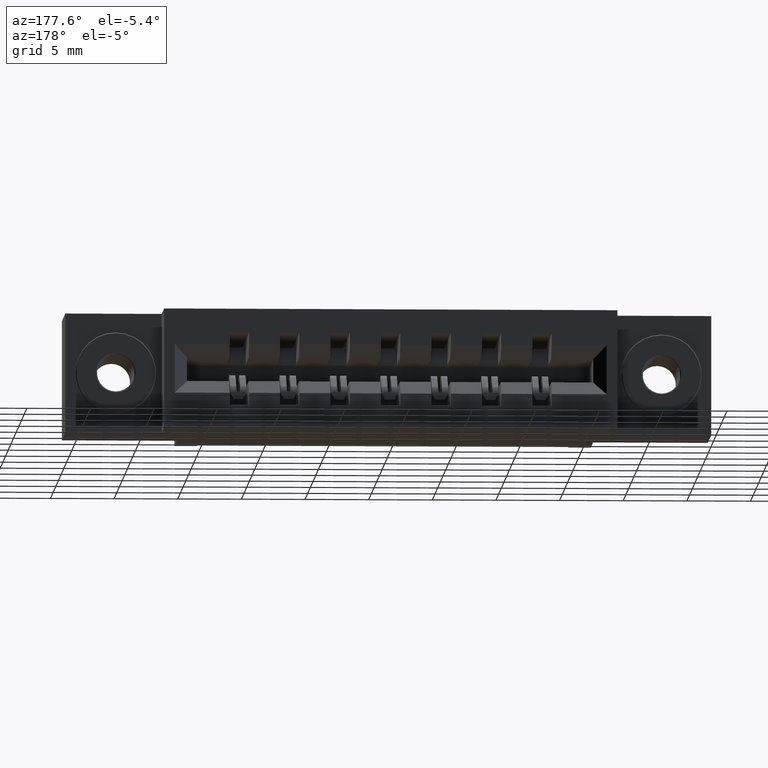
[diagram: clean part render]
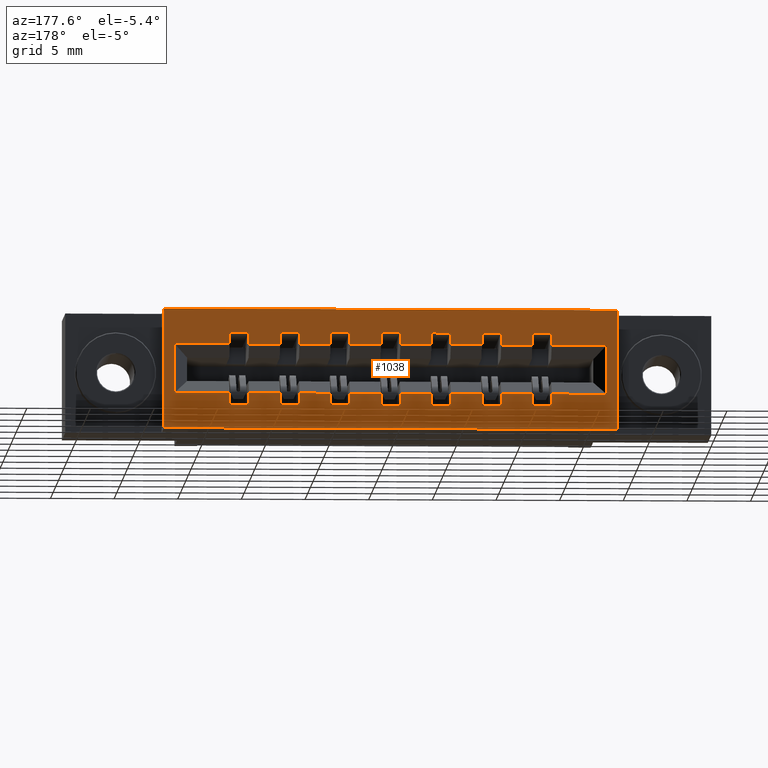
[diagram: same view with one face highlighted and labeled with its STEP entity id]
A machine part, auxiliary view. The second image highlights one B-rep face of the part: STEP entity #1038.
In plain terms, the highlighted planar face has unit normal (0, -1, 0).
Its self-contained STEP definition (entity closure, byte-faithful):
#21 = VERTEX_POINT ( 'NONE', #2832 ) ;
#44 = DIRECTION ( 'NONE',  ( -1.000000000000000000, -0.0000000000000000000, -6.836456440601259400E-017 ) ) ;
#121 = LINE ( 'NONE', #1940, #5985 ) ;
#132 = VECTOR ( 'NONE', #4659, 39.37007874015748100 ) ;
#165 = EDGE_CURVE ( 'NONE', #7368, #2828, #7023, .T. ) ;
#183 = VERTEX_POINT ( 'NONE', #3971 ) ;
#190 = VERTEX_POINT ( 'NONE', #9858 ) ;
#210 = VECTOR ( 'NONE', #309, 39.37007874015748100 ) ;
#213 = EDGE_CURVE ( 'NONE', #7865, #2107, #8834, .T. ) ;
#232 = EDGE_CURVE ( 'NONE', #6452, #5898, #6629, .T. ) ;
#238 = EDGE_CURVE ( 'NONE', #8641, #8910, #5378, .T. ) ;
#281 = LINE ( 'NONE', #7581, #6788 ) ;
#309 = DIRECTION ( 'NONE',  ( 0.0000000000000000000, 0.0000000000000000000, -1.000000000000000000 ) ) ;
#325 = VECTOR ( 'NONE', #555, 39.37007874015748100 ) ;
#379 = VECTOR ( 'NONE', #629, 39.37007874015748100 ) ;
#402 = DIRECTION ( 'NONE',  ( 1.000000000000000000, -0.0000000000000000000, -0.0000000000000000000 ) ) ;
#403 = DIRECTION ( 'NONE',  ( 0.0000000000000000000, 0.0000000000000000000, 1.000000000000000000 ) ) ;
#419 = VERTEX_POINT ( 'NONE', #8577 ) ;
#423 = VECTOR ( 'NONE', #8334, 39.37007874015748100 ) ;
#424 = EDGE_CURVE ( 'NONE', #3993, #10382, #6373, .T. ) ;
#426 = CARTESIAN_POINT ( 'NONE',  ( 0.9689999999999998600, 0.5999999999999999800, -0.07249999999999998100 ) ) ;
#437 = EDGE_CURVE ( 'NONE', #6455, #7312, #2318, .T. ) ;
#442 = CARTESIAN_POINT ( 'NONE',  ( 1.184999999999999800, 0.5999999999999999800, -0.2610000000000000100 ) ) ;
#448 = EDGE_CURVE ( 'NONE', #8500, #190, #121, .T. ) ;
#467 = LINE ( 'NONE', #4052, #6715 ) ;
#493 = EDGE_CURVE ( 'NONE', #3047, #8714, #4609, .T. ) ;
#535 = LINE ( 'NONE', #5491, #7574 ) ;
#542 = DIRECTION ( 'NONE',  ( 0.0000000000000000000, 0.0000000000000000000, 1.000000000000000000 ) ) ;
#555 = DIRECTION ( 'NONE',  ( 1.000000000000000000, -0.0000000000000000000, -0.0000000000000000000 ) ) ;
#573 = EDGE_CURVE ( 'NONE', #6691, #2464, #1266, .T. ) ;
#577 = LINE ( 'NONE', #1114, #3533 ) ;
#578 = LINE ( 'NONE', #6471, #6570 ) ;
#597 = CARTESIAN_POINT ( 'NONE',  ( 0.5610000000000000500, 0.5999999999999999800, -0.2974999999999999900 ) ) ;
#629 = DIRECTION ( 'NONE',  ( -1.000000000000000000, 0.0000000000000000000, 0.0000000000000000000 ) ) ;
#653 = ORIENTED_EDGE ( 'NONE', *, *, #5576, .F. ) ;
#695 = ORIENTED_EDGE ( 'NONE', *, *, #424, .F. ) ;
#704 = DIRECTION ( 'NONE',  ( 1.000000000000000000, 0.0000000000000000000, 0.0000000000000000000 ) ) ;
#719 = LINE ( 'NONE', #1212, #4170 ) ;
#730 = LINE ( 'NONE', #4861, #2662 ) ;
#746 = CARTESIAN_POINT ( 'NONE',  ( 0.0000000000000000000, 0.5999999999999999800, -0.2609999999999999500 ) ) ;
#778 = VERTEX_POINT ( 'NONE', #9013 ) ;
#834 = ORIENTED_EDGE ( 'NONE', *, *, #8287, .T. ) ;
#876 = DIRECTION ( 'NONE',  ( 0.0000000000000000000, 0.0000000000000000000, 1.000000000000000000 ) ) ;
#897 = ORIENTED_EDGE ( 'NONE', *, *, #7790, .F. ) ;
#923 = ORIENTED_EDGE ( 'NONE', *, *, #5392, .T. ) ;
#962 = DIRECTION ( 'NONE',  ( -1.000000000000000000, 0.0000000000000000000, 0.0000000000000000000 ) ) ;
#974 = VECTOR ( 'NONE', #8748, 39.37007874015748100 ) ;
#1001 = ORIENTED_EDGE ( 'NONE', *, *, #8624, .T. ) ;
#1013 = CARTESIAN_POINT ( 'NONE',  ( 0.8129999999999999400, 0.5999999999999999800, -0.07249999999999999500 ) ) ;
#1038 = ADVANCED_FACE ( 'NONE', ( #5855, #3437 ), #5398, .F. ) ;
#1048 = ORIENTED_EDGE ( 'NONE', *, *, #8822, .F. ) ;
#1056 = ORIENTED_EDGE ( 'NONE', *, *, #6084, .T. ) ;
#1085 = LINE ( 'NONE', #8165, #10150 ) ;
#1114 = CARTESIAN_POINT ( 'NONE',  ( 0.0000000000000000000, 0.5999999999999999800, -0.1090000000000002200 ) ) ;
#1152 = EDGE_CURVE ( 'NONE', #8688, #6455, #1387, .T. ) ;
#1190 = EDGE_CURVE ( 'NONE', #5902, #3109, #9061, .T. ) ;
#1202 = LINE ( 'NONE', #3444, #5061 ) ;
#1212 = CARTESIAN_POINT ( 'NONE',  ( 1.496999999999999900, 0.5999999999999999800, -0.2974999999999999300 ) ) ;
#1218 = CARTESIAN_POINT ( 'NONE',  ( 1.124999999999999800, 0.5999999999999999800, -0.2974999999999999900 ) ) ;
#1222 = CARTESIAN_POINT ( 'NONE',  ( 0.5010000000000001100, 0.5999999999999999800, -0.1090000000000001900 ) ) ;
#1224 = CARTESIAN_POINT ( 'NONE',  ( 1.700000000000000000, 0.5999999999999999800, -0.3699999999999998800 ) ) ;
#1241 = VERTEX_POINT ( 'NONE', #7941 ) ;
#1246 = EDGE_CURVE ( 'NONE', #4399, #7312, #8315, .T. ) ;
#1266 = LINE ( 'NONE', #5486, #3733 ) ;
#1268 = LINE ( 'NONE', #3766, #9821 ) ;
#1279 = VECTOR ( 'NONE', #5055, 39.37007874015748100 ) ;
#1284 = CARTESIAN_POINT ( 'NONE',  ( 1.280999999999999700, 0.5999999999999999800, -0.07249999999999996700 ) ) ;
#1304 = DIRECTION ( 'NONE',  ( 0.0000000000000000000, 0.0000000000000000000, 1.000000000000000000 ) ) ;
#1313 = VECTOR ( 'NONE', #10270, 39.37007874015748100 ) ;
#1360 = CARTESIAN_POINT ( 'NONE',  ( 1.028999999999999900, 0.5999999999999999800, -0.2974999999999999900 ) ) ;
#1367 = CARTESIAN_POINT ( 'NONE',  ( 1.340999999999999700, 0.5999999999999999800, -0.2609999999999999500 ) ) ;
#1387 = LINE ( 'NONE', #5474, #9808 ) ;
#1423 = CARTESIAN_POINT ( 'NONE',  ( 0.8730000000000000000, 0.5999999999999999800, -0.2974999999999999900 ) ) ;
#1432 = ORIENTED_EDGE ( 'NONE', *, *, #9796, .T. ) ;
#1498 = ORIENTED_EDGE ( 'NONE', *, *, #238, .F. ) ;
#1544 = CARTESIAN_POINT ( 'NONE',  ( 0.7170000000000000800, 0.5999999999999999800, -0.1090000000000002200 ) ) ;
#1571 = CARTESIAN_POINT ( 'NONE',  ( 1.280999999999999700, 0.5999999999999999800, -0.2974999999999999300 ) ) ;
#1654 = VERTEX_POINT ( 'NONE', #6219 ) ;
#1713 = LINE ( 'NONE', #6533, #3517 ) ;
#1722 = EDGE_CURVE ( 'NONE', #3357, #1654, #4207, .T. ) ;
#1737 = VECTOR ( 'NONE', #962, 39.37007874015748100 ) ;
#1739 = DIRECTION ( 'NONE',  ( -1.000000000000000000, 0.0000000000000000000, 0.0000000000000000000 ) ) ;
#1789 = VECTOR ( 'NONE', #1739, 39.37007874015748100 ) ;
#1835 = ORIENTED_EDGE ( 'NONE', *, *, #3673, .T. ) ;
#1871 = VERTEX_POINT ( 'NONE', #2394 ) ;
#1880 = EDGE_CURVE ( 'NONE', #4597, #5258, #3965, .T. ) ;
#1911 = LINE ( 'NONE', #2133, #9582 ) ;
#1940 = CARTESIAN_POINT ( 'NONE',  ( 0.6570000000000000300, 0.5999999999999999800, -0.2974999999999999900 ) ) ;
#1945 = VERTEX_POINT ( 'NONE', #5692 ) ;
#1970 = DIRECTION ( 'NONE',  ( 0.0000000000000000000, 0.0000000000000000000, 1.000000000000000000 ) ) ;
#1995 = ORIENTED_EDGE ( 'NONE', *, *, #9220, .T. ) ;
#2017 = CARTESIAN_POINT ( 'NONE',  ( 0.3310000000000001800, 0.5999999999999999800, -0.3700000000000001600 ) ) ;
#2033 = LINE ( 'NONE', #1013, #6750 ) ;
#2052 = CARTESIAN_POINT ( 'NONE',  ( 0.5610000000000000500, 0.5999999999999999800, -0.1090000000000002200 ) ) ;
#2107 = VERTEX_POINT ( 'NONE', #3488 ) ;
#2133 = CARTESIAN_POINT ( 'NONE',  ( 0.9689999999999998600, 0.5999999999999999800, -0.2974999999999999900 ) ) ;
#2204 = ORIENTED_EDGE ( 'NONE', *, *, #6812, .T. ) ;
#2285 = DIRECTION ( 'NONE',  ( 1.000000000000000000, 0.0000000000000000000, 0.0000000000000000000 ) ) ;
#2318 = LINE ( 'NONE', #4380, #7668 ) ;
#2336 = DIRECTION ( 'NONE',  ( 0.0000000000000000000, 0.0000000000000000000, 1.000000000000000000 ) ) ;
#2367 = VECTOR ( 'NONE', #6201, 39.37007874015748100 ) ;
#2369 = VERTEX_POINT ( 'NONE', #7256 ) ;
#2376 = LINE ( 'NONE', #3521, #9005 ) ;
#2394 = CARTESIAN_POINT ( 'NONE',  ( 0.5610000000000000500, 0.5999999999999999800, -0.2974999999999999900 ) ) ;
#2402 = LINE ( 'NONE', #5718, #5328 ) ;
#2432 = EDGE_CURVE ( 'NONE', #6928, #5305, #5746, .T. ) ;
#2464 = VERTEX_POINT ( 'NONE', #3887 ) ;
#2509 = VERTEX_POINT ( 'NONE', #8028 ) ;
#2524 = LINE ( 'NONE', #5783, #1737 ) ;
#2662 = VECTOR ( 'NONE', #7258, 39.37007874015748100 ) ;
#2674 = ORIENTED_EDGE ( 'NONE', *, *, #232, .T. ) ;
#2682 = ORIENTED_EDGE ( 'NONE', *, *, #9804, .T. ) ;
#2715 = LINE ( 'NONE', #746, #8718 ) ;
#2728 = DIRECTION ( 'NONE',  ( 1.000000000000000000, -0.0000000000000000000, -0.0000000000000000000 ) ) ;
#2767 = ORIENTED_EDGE ( 'NONE', *, *, #8268, .T. ) ;
#2791 = ORIENTED_EDGE ( 'NONE', *, *, #3566, .F. ) ;
#2798 = CARTESIAN_POINT ( 'NONE',  ( 0.9689999999999998600, 0.5999999999999999800, -0.2974999999999999900 ) ) ;
#2828 = VERTEX_POINT ( 'NONE', #9915 ) ;
#2832 = CARTESIAN_POINT ( 'NONE',  ( 1.666999999999999800, 0.5999999999999999800, -0.1090000000000002200 ) ) ;
#2873 = CARTESIAN_POINT ( 'NONE',  ( 1.666999999999999800, 0.5999999999999999800, -0.2609999999999999500 ) ) ;
#2889 = EDGE_CURVE ( 'NONE', #3631, #7065, #6120, .T. ) ;
#2902 = LINE ( 'NONE', #7576, #8023 ) ;
#2908 = ORIENTED_EDGE ( 'NONE', *, *, #9075, .T. ) ;
#2927 = AXIS2_PLACEMENT_3D ( 'NONE', #7685, #7798, #5324 ) ;
#2944 = CARTESIAN_POINT ( 'NONE',  ( 0.8129999999999999400, 0.5999999999999999800, -0.2974999999999999900 ) ) ;
#2961 = VECTOR ( 'NONE', #9236, 39.37007874015748100 ) ;
#2968 = CARTESIAN_POINT ( 'NONE',  ( 1.124999999999999800, 0.5999999999999999800, -0.1090000000000001500 ) ) ;
#3032 = VERTEX_POINT ( 'NONE', #3663 ) ;
#3035 = LINE ( 'NONE', #8939, #3690 ) ;
#3045 = VECTOR ( 'NONE', #6198, 39.37007874015748100 ) ;
#3047 = VERTEX_POINT ( 'NONE', #8595 ) ;
#3091 = CARTESIAN_POINT ( 'NONE',  ( 0.0000000000000000000, 0.5999999999999999800, -0.1090000000000002200 ) ) ;
#3109 = VERTEX_POINT ( 'NONE', #10412 ) ;
#3121 = CARTESIAN_POINT ( 'NONE',  ( 0.6570000000000000300, 0.5999999999999999800, -0.2974999999999999900 ) ) ;
#3164 = CARTESIAN_POINT ( 'NONE',  ( 1.340999999999999700, 0.5999999999999999800, -0.1090000000000002200 ) ) ;
#3172 = VECTOR ( 'NONE', #3955, 39.37007874015748100 ) ;
#3195 = CARTESIAN_POINT ( 'NONE',  ( 0.2980000000000001000, 0.5999999999999999800, -0.3700000000000001600 ) ) ;
#3255 = LINE ( 'NONE', #4600, #1313 ) ;
#3261 = CARTESIAN_POINT ( 'NONE',  ( 1.184999999999999800, 0.5999999999999999800, -0.2974999999999999900 ) ) ;
#3301 = DIRECTION ( 'NONE',  ( -1.000000000000000000, 0.0000000000000000000, 0.0000000000000000000 ) ) ;
#3310 = EDGE_LOOP ( 'NONE', ( #5290, #8630, #4258, #1995, #10092, #6071, #5326, #8923, #897, #2682, #3502, #653, #5526, #923, #4115, #5649, #8194, #9530, #2204, #6216, #3410, #4393, #4538, #9480, #1048, #3748, #6910, #7377, #4555, #8039, #6853, #5947, #6400, #5325, #3846, #1001, #9763, #10283, #6783, #9411, #1498, #9399, #3670, #1056, #3609, #10106, #6204, #1835, #2791, #5723, #1432, #834, #695, #2767, #8823, #10434, #4615, #2908, #10271, #7325 ) ) ;
#3320 = CARTESIAN_POINT ( 'NONE',  ( 0.0000000000000000000, 0.5999999999999999800, -0.1090000000000002200 ) ) ;
#3321 = VECTOR ( 'NONE', #9511, 39.37007874015748100 ) ;
#3328 = CARTESIAN_POINT ( 'NONE',  ( 0.0000000000000000000, 0.5999999999999999800, -0.1090000000000002200 ) ) ;
#3330 = EDGE_CURVE ( 'NONE', #2509, #9320, #6508, .T. ) ;
#3336 = CARTESIAN_POINT ( 'NONE',  ( 1.028999999999999900, 0.5999999999999999800, -0.2610000000000000100 ) ) ;
#3349 = LINE ( 'NONE', #6346, #5642 ) ;
#3351 = DIRECTION ( 'NONE',  ( -1.000000000000000000, 0.0000000000000000000, 0.0000000000000000000 ) ) ;
#3357 = VERTEX_POINT ( 'NONE', #9942 ) ;
#3409 = CARTESIAN_POINT ( 'NONE',  ( 1.437000000000000100, 0.5999999999999999800, -0.2609999999999999500 ) ) ;
#3410 = ORIENTED_EDGE ( 'NONE', *, *, #4729, .F. ) ;
#3437 = FACE_BOUND ( 'NONE', #3310, .T. ) ;
#3441 = VERTEX_POINT ( 'NONE', #5047 ) ;
#3444 = CARTESIAN_POINT ( 'NONE',  ( 1.700000000000000000, 0.5999999999999999800, 0.0000000000000000000 ) ) ;
#3454 = VECTOR ( 'NONE', #542, 39.37007874015748100 ) ;
#3474 = EDGE_CURVE ( 'NONE', #21, #9751, #3990, .T. ) ;
#3488 = CARTESIAN_POINT ( 'NONE',  ( 1.700000000000000000, 0.5999999999999999800, 0.0000000000000000000 ) ) ;
#3502 = ORIENTED_EDGE ( 'NONE', *, *, #3834, .T. ) ;
#3503 = CARTESIAN_POINT ( 'NONE',  ( 0.6570000000000000300, 0.5999999999999999800, -0.2610000000000000100 ) ) ;
#3504 = CARTESIAN_POINT ( 'NONE',  ( 0.6570000000000000300, 0.5999999999999999800, -0.07250000000000000900 ) ) ;
#3517 = VECTOR ( 'NONE', #9852, 39.37007874015748100 ) ;
#3521 = CARTESIAN_POINT ( 'NONE',  ( 1.028999999999999900, 0.5999999999999999800, -0.2974999999999999900 ) ) ;
#3533 = VECTOR ( 'NONE', #6038, 39.37007874015748100 ) ;
#3559 = LINE ( 'NONE', #2944, #5959 ) ;
#3566 = EDGE_CURVE ( 'NONE', #3631, #6408, #1911, .T. ) ;
#3569 = EDGE_CURVE ( 'NONE', #190, #2464, #8199, .T. ) ;
#3597 = VECTOR ( 'NONE', #9711, 39.37007874015748100 ) ;
#3609 = ORIENTED_EDGE ( 'NONE', *, *, #1722, .F. ) ;
#3631 = VERTEX_POINT ( 'NONE', #6147 ) ;
#3663 = CARTESIAN_POINT ( 'NONE',  ( 1.184999999999999800, 0.5999999999999999800, -0.07249999999999996700 ) ) ;
#3670 = ORIENTED_EDGE ( 'NONE', *, *, #1190, .T. ) ;
#3673 = EDGE_CURVE ( 'NONE', #10462, #6408, #1268, .T. ) ;
#3677 = VECTOR ( 'NONE', #8345, 39.37007874015748100 ) ;
#3679 = CARTESIAN_POINT ( 'NONE',  ( 1.124999999999999800, 0.5999999999999999800, -0.2974999999999999900 ) ) ;
#3690 = VECTOR ( 'NONE', #4121, 39.37007874015748100 ) ;
#3733 = VECTOR ( 'NONE', #6209, 39.37007874015748100 ) ;
#3748 = ORIENTED_EDGE ( 'NONE', *, *, #9202, .T. ) ;
#3766 = CARTESIAN_POINT ( 'NONE',  ( 0.0000000000000000000, 0.5999999999999999800, -0.2609999999999999500 ) ) ;
#3775 = DIRECTION ( 'NONE',  ( 1.000000000000000000, -0.0000000000000000000, -0.0000000000000000000 ) ) ;
#3794 = VECTOR ( 'NONE', #6539, 39.37007874015748100 ) ;
#3808 = CARTESIAN_POINT ( 'NONE',  ( 0.7170000000000000800, 0.5999999999999999800, -0.2974999999999999900 ) ) ;
#3834 = EDGE_CURVE ( 'NONE', #8238, #7067, #7799, .T. ) ;
#3846 = ORIENTED_EDGE ( 'NONE', *, *, #9385, .T. ) ;
#3847 = CARTESIAN_POINT ( 'NONE',  ( 0.5010000000000001100, 0.5999999999999999800, -0.07250000000000000900 ) ) ;
#3882 = CARTESIAN_POINT ( 'NONE',  ( 1.184999999999999800, 0.5999999999999999800, -0.2974999999999999900 ) ) ;
#3887 = CARTESIAN_POINT ( 'NONE',  ( 0.7170000000000000800, 0.5999999999999999800, -0.07250000000000000900 ) ) ;
#3897 = DIRECTION ( 'NONE',  ( 0.0000000000000000000, 0.0000000000000000000, 1.000000000000000000 ) ) ;
#3925 = VECTOR ( 'NONE', #8128, 39.37007874015748100 ) ;
#3955 = DIRECTION ( 'NONE',  ( 1.000000000000000000, -0.0000000000000000000, -0.0000000000000000000 ) ) ;
#3965 = LINE ( 'NONE', #4872, #8443 ) ;
#3971 = CARTESIAN_POINT ( 'NONE',  ( 0.5010000000000001100, 0.5999999999999999800, -0.07250000000000000900 ) ) ;
#3990 = LINE ( 'NONE', #3328, #1789 ) ;
#3993 = VERTEX_POINT ( 'NONE', #10006 ) ;
#4003 = EDGE_CURVE ( 'NONE', #778, #7511, #2033, .T. ) ;
#4005 = VERTEX_POINT ( 'NONE', #8302 ) ;
#4028 = CARTESIAN_POINT ( 'NONE',  ( 1.437000000000000100, 0.5999999999999999800, -0.2974999999999999300 ) ) ;
#4041 = VERTEX_POINT ( 'NONE', #8578 ) ;
#4052 = CARTESIAN_POINT ( 'NONE',  ( 0.0000000000000000000, 0.5999999999999999800, -0.1090000000000002200 ) ) ;
#4057 = CARTESIAN_POINT ( 'NONE',  ( 0.9689999999999998600, 0.5999999999999999800, -0.1090000000000001500 ) ) ;
#4065 = LINE ( 'NONE', #1571, #3172 ) ;
#4073 = VECTOR ( 'NONE', #876, 39.37007874015748100 ) ;
#4078 = CARTESIAN_POINT ( 'NONE',  ( 1.496999999999999900, 0.5999999999999999800, -0.2974999999999999300 ) ) ;
#4115 = ORIENTED_EDGE ( 'NONE', *, *, #7003, .T. ) ;
#4121 = DIRECTION ( 'NONE',  ( 0.0000000000000000000, 0.0000000000000000000, 1.000000000000000000 ) ) ;
#4170 = VECTOR ( 'NONE', #1970, 39.37007874015748100 ) ;
#4207 = LINE ( 'NONE', #5600, #4466 ) ;
#4235 = CARTESIAN_POINT ( 'NONE',  ( 1.280999999999999700, 0.5999999999999999800, -0.1090000000000001500 ) ) ;
#4240 = CARTESIAN_POINT ( 'NONE',  ( 0.6570000000000000300, 0.5999999999999999800, -0.2974999999999999900 ) ) ;
#4247 = CARTESIAN_POINT ( 'NONE',  ( 0.8129999999999999400, 0.5999999999999999800, -0.2974999999999999900 ) ) ;
#4258 = ORIENTED_EDGE ( 'NONE', *, *, #5733, .T. ) ;
#4305 = LINE ( 'NONE', #5464, #325 ) ;
#4380 = CARTESIAN_POINT ( 'NONE',  ( 0.0000000000000000000, 0.5999999999999999800, -0.2609999999999999500 ) ) ;
#4393 = ORIENTED_EDGE ( 'NONE', *, *, #10173, .T. ) ;
#4399 = VERTEX_POINT ( 'NONE', #5916 ) ;
#4404 = LINE ( 'NONE', #3091, #423 ) ;
#4417 = DIRECTION ( 'NONE',  ( 1.000000000000000000, 0.0000000000000000000, 0.0000000000000000000 ) ) ;
#4427 = LINE ( 'NONE', #9703, #3925 ) ;
#4466 = VECTOR ( 'NONE', #8072, 39.37007874015748100 ) ;
#4538 = ORIENTED_EDGE ( 'NONE', *, *, #7443, .T. ) ;
#4555 = ORIENTED_EDGE ( 'NONE', *, *, #448, .F. ) ;
#4582 = ORIENTED_EDGE ( 'NONE', *, *, #6746, .F. ) ;
#4585 = CARTESIAN_POINT ( 'NONE',  ( 1.666999999999999800, 0.5999999999999999800, -0.3700000000000001600 ) ) ;
#4597 = VERTEX_POINT ( 'NONE', #2968 ) ;
#4600 = CARTESIAN_POINT ( 'NONE',  ( 0.8730000000000000000, 0.5999999999999999800, -0.2974999999999999900 ) ) ;
#4609 = LINE ( 'NONE', #10362, #3454 ) ;
#4615 = ORIENTED_EDGE ( 'NONE', *, *, #1246, .F. ) ;
#4659 = DIRECTION ( 'NONE',  ( 1.000000000000000000, -0.0000000000000000000, -0.0000000000000000000 ) ) ;
#4729 = EDGE_CURVE ( 'NONE', #8266, #6174, #4856, .T. ) ;
#4756 = DIRECTION ( 'NONE',  ( 0.0000000000000000000, 0.0000000000000000000, 1.000000000000000000 ) ) ;
#4811 = CARTESIAN_POINT ( 'NONE',  ( 1.280999999999999700, 0.5999999999999999800, -0.2974999999999999300 ) ) ;
#4856 = LINE ( 'NONE', #9596, #7254 ) ;
#4861 = CARTESIAN_POINT ( 'NONE',  ( 1.280999999999999700, 0.5999999999999999800, -0.2974999999999999300 ) ) ;
#4872 = CARTESIAN_POINT ( 'NONE',  ( 0.0000000000000000000, 0.5999999999999999800, -0.1090000000000002200 ) ) ;
#4884 = CARTESIAN_POINT ( 'NONE',  ( 0.5010000000000001100, 0.5999999999999999800, -0.2610000000000000100 ) ) ;
#4919 = DIRECTION ( 'NONE',  ( 1.000000000000000000, -0.0000000000000000000, -0.0000000000000000000 ) ) ;
#4969 = CARTESIAN_POINT ( 'NONE',  ( 0.0000000000000000000, 0.5999999999999999800, -0.3700000000000001600 ) ) ;
#4977 = VERTEX_POINT ( 'NONE', #10139 ) ;
#5003 = VECTOR ( 'NONE', #2285, 39.37007874015748100 ) ;
#5018 = CARTESIAN_POINT ( 'NONE',  ( 0.5610000000000000500, 0.5999999999999999800, -0.2974999999999999900 ) ) ;
#5034 = EDGE_CURVE ( 'NONE', #8641, #5902, #8159, .T. ) ;
#5047 = CARTESIAN_POINT ( 'NONE',  ( 1.340999999999999700, 0.5999999999999999800, -0.2974999999999999300 ) ) ;
#5049 = EDGE_CURVE ( 'NONE', #4597, #9723, #6593, .T. ) ;
#5055 = DIRECTION ( 'NONE',  ( 1.000000000000000000, 0.0000000000000000000, 0.0000000000000000000 ) ) ;
#5061 = VECTOR ( 'NONE', #7582, 39.37007874015748100 ) ;
#5077 = VECTOR ( 'NONE', #10085, 39.37007874015748100 ) ;
#5121 = VECTOR ( 'NONE', #403, 39.37007874015748100 ) ;
#5137 = DIRECTION ( 'NONE',  ( 1.000000000000000000, -0.0000000000000000000, -0.0000000000000000000 ) ) ;
#5146 = VERTEX_POINT ( 'NONE', #1367 ) ;
#5212 = LINE ( 'NONE', #4585, #3045 ) ;
#5216 = ORIENTED_EDGE ( 'NONE', *, *, #6690, .F. ) ;
#5251 = VECTOR ( 'NONE', #9772, 39.37007874015748100 ) ;
#5258 = VERTEX_POINT ( 'NONE', #7184 ) ;
#5272 = CARTESIAN_POINT ( 'NONE',  ( 1.280999999999999700, 0.5999999999999999800, -0.2609999999999999500 ) ) ;
#5288 = ORIENTED_EDGE ( 'NONE', *, *, #213, .T. ) ;
#5290 = ORIENTED_EDGE ( 'NONE', *, *, #8704, .F. ) ;
#5304 = CARTESIAN_POINT ( 'NONE',  ( 0.6570000000000000300, 0.5999999999999999800, -0.2974999999999999900 ) ) ;
#5305 = VERTEX_POINT ( 'NONE', #8174 ) ;
#5314 = EDGE_CURVE ( 'NONE', #6743, #7995, #730, .T. ) ;
#5319 = VECTOR ( 'NONE', #8234, 39.37007874015748100 ) ;
#5320 = CARTESIAN_POINT ( 'NONE',  ( 0.6570000000000000300, 0.5999999999999999800, -0.1090000000000001900 ) ) ;
#5324 = DIRECTION ( 'NONE',  ( 0.0000000000000000000, -0.0000000000000000000, -1.000000000000000000 ) ) ;
#5325 = ORIENTED_EDGE ( 'NONE', *, *, #165, .T. ) ;
#5326 = ORIENTED_EDGE ( 'NONE', *, *, #6150, .T. ) ;
#5328 = VECTOR ( 'NONE', #5818, 39.37007874015748100 ) ;
#5378 = LINE ( 'NONE', #4240, #2961 ) ;
#5392 = EDGE_CURVE ( 'NONE', #6743, #5540, #2524, .T. ) ;
#5398 = PLANE ( 'NONE',  #2927 ) ;
#5464 = CARTESIAN_POINT ( 'NONE',  ( 0.5010000000000001100, 0.5999999999999999800, -0.2974999999999999900 ) ) ;
#5474 = CARTESIAN_POINT ( 'NONE',  ( 1.184999999999999800, 0.5999999999999999800, -0.2974999999999999900 ) ) ;
#5486 = CARTESIAN_POINT ( 'NONE',  ( 0.7170000000000000800, 0.5999999999999999800, -0.2974999999999999900 ) ) ;
#5491 = CARTESIAN_POINT ( 'NONE',  ( 1.437000000000000100, 0.5999999999999999800, -0.2974999999999999300 ) ) ;
#5513 = DIRECTION ( 'NONE',  ( 1.000000000000000000, -0.0000000000000000000, -0.0000000000000000000 ) ) ;
#5526 = ORIENTED_EDGE ( 'NONE', *, *, #5314, .F. ) ;
#5540 = VERTEX_POINT ( 'NONE', #6019 ) ;
#5576 = EDGE_CURVE ( 'NONE', #7995, #7067, #2902, .T. ) ;
#5600 = CARTESIAN_POINT ( 'NONE',  ( 0.8129999999999999400, 0.5999999999999999800, -0.2974999999999999900 ) ) ;
#5611 = DIRECTION ( 'NONE',  ( 1.000000000000000000, 0.0000000000000000000, 0.0000000000000000000 ) ) ;
#5638 = DIRECTION ( 'NONE',  ( 0.0000000000000000000, 0.0000000000000000000, 1.000000000000000000 ) ) ;
#5639 = CARTESIAN_POINT ( 'NONE',  ( 1.340999999999999700, 0.5999999999999999800, -0.2974999999999999300 ) ) ;
#5642 = VECTOR ( 'NONE', #4919, 39.37007874015748100 ) ;
#5649 = ORIENTED_EDGE ( 'NONE', *, *, #10050, .F. ) ;
#5692 = CARTESIAN_POINT ( 'NONE',  ( 0.3310000000000001800, 0.5999999999999999800, -0.2609999999999999500 ) ) ;
#5718 = CARTESIAN_POINT ( 'NONE',  ( 0.0000000000000000000, 0.5999999999999999800, -0.2609999999999999500 ) ) ;
#5723 = ORIENTED_EDGE ( 'NONE', *, *, #2889, .T. ) ;
#5733 = EDGE_CURVE ( 'NONE', #5305, #6161, #719, .T. ) ;
#5746 = LINE ( 'NONE', #4028, #3597 ) ;
#5750 = CARTESIAN_POINT ( 'NONE',  ( 0.8730000000000000000, 0.5999999999999999800, -0.07249999999999999500 ) ) ;
#5783 = CARTESIAN_POINT ( 'NONE',  ( 0.0000000000000000000, 0.5999999999999999800, -0.1090000000000002200 ) ) ;
#5818 = DIRECTION ( 'NONE',  ( 1.000000000000000000, 0.0000000000000000000, 0.0000000000000000000 ) ) ;
#5836 = EDGE_CURVE ( 'NONE', #1241, #8910, #4427, .T. ) ;
#5855 = FACE_OUTER_BOUND ( 'NONE', #7632, .T. ) ;
#5858 = EDGE_CURVE ( 'NONE', #7368, #183, #1085, .T. ) ;
#5898 = VERTEX_POINT ( 'NONE', #3195 ) ;
#5902 = VERTEX_POINT ( 'NONE', #9153 ) ;
#5916 = CARTESIAN_POINT ( 'NONE',  ( 1.280999999999999700, 0.5999999999999999800, -0.2974999999999999300 ) ) ;
#5947 = ORIENTED_EDGE ( 'NONE', *, *, #8026, .F. ) ;
#5959 = VECTOR ( 'NONE', #3775, 39.37007874015748100 ) ;
#5985 = VECTOR ( 'NONE', #7666, 39.37007874015748100 ) ;
#6019 = CARTESIAN_POINT ( 'NONE',  ( 1.184999999999999800, 0.5999999999999999800, -0.1090000000000002200 ) ) ;
#6038 = DIRECTION ( 'NONE',  ( -1.000000000000000000, 0.0000000000000000000, 0.0000000000000000000 ) ) ;
#6044 = EDGE_CURVE ( 'NONE', #3047, #1871, #4305, .T. ) ;
#6063 = LINE ( 'NONE', #9837, #5319 ) ;
#6071 = ORIENTED_EDGE ( 'NONE', *, *, #3474, .T. ) ;
#6084 = EDGE_CURVE ( 'NONE', #3109, #1654, #578, .T. ) ;
#6094 = EDGE_CURVE ( 'NONE', #1871, #1241, #8137, .T. ) ;
#6120 = LINE ( 'NONE', #2798, #132 ) ;
#6134 = VECTOR ( 'NONE', #5513, 39.37007874015748100 ) ;
#6147 = CARTESIAN_POINT ( 'NONE',  ( 0.9689999999999998600, 0.5999999999999999800, -0.2974999999999999900 ) ) ;
#6150 = EDGE_CURVE ( 'NONE', #9751, #9320, #7607, .T. ) ;
#6161 = VERTEX_POINT ( 'NONE', #9793 ) ;
#6174 = VERTEX_POINT ( 'NONE', #10504 ) ;
#6179 = VECTOR ( 'NONE', #5638, 39.37007874015748100 ) ;
#6198 = DIRECTION ( 'NONE',  ( 0.0000000000000000000, 0.0000000000000000000, 1.000000000000000000 ) ) ;
#6201 = DIRECTION ( 'NONE',  ( 0.0000000000000000000, 0.0000000000000000000, 1.000000000000000000 ) ) ;
#6204 = ORIENTED_EDGE ( 'NONE', *, *, #9946, .T. ) ;
#6209 = DIRECTION ( 'NONE',  ( 0.0000000000000000000, 0.0000000000000000000, 1.000000000000000000 ) ) ;
#6216 = ORIENTED_EDGE ( 'NONE', *, *, #9544, .F. ) ;
#6219 = CARTESIAN_POINT ( 'NONE',  ( 0.8129999999999999400, 0.5999999999999999800, -0.2610000000000000100 ) ) ;
#6273 = CARTESIAN_POINT ( 'NONE',  ( 1.340999999999999700, 0.5999999999999999800, -0.07249999999999996700 ) ) ;
#6335 = LINE ( 'NONE', #4247, #4073 ) ;
#6346 = CARTESIAN_POINT ( 'NONE',  ( 1.124999999999999800, 0.5999999999999999800, -0.2974999999999999900 ) ) ;
#6355 = CARTESIAN_POINT ( 'NONE',  ( 0.8730000000000000000, 0.5999999999999999800, -0.2610000000000000100 ) ) ;
#6358 = CARTESIAN_POINT ( 'NONE',  ( 0.2980000000000001000, 0.5999999999999999800, 0.0000000000000000000 ) ) ;
#6373 = LINE ( 'NONE', #3679, #5121 ) ;
#6400 = ORIENTED_EDGE ( 'NONE', *, *, #5858, .F. ) ;
#6408 = VERTEX_POINT ( 'NONE', #9388 ) ;
#6445 = LINE ( 'NONE', #8523, #5077 ) ;
#6452 = VERTEX_POINT ( 'NONE', #1224 ) ;
#6455 = VERTEX_POINT ( 'NONE', #442 ) ;
#6471 = CARTESIAN_POINT ( 'NONE',  ( 0.0000000000000000000, 0.5999999999999999800, -0.2609999999999999500 ) ) ;
#6474 = VERTEX_POINT ( 'NONE', #2052 ) ;
#6497 = VECTOR ( 'NONE', #6761, 39.37007874015748100 ) ;
#6508 = LINE ( 'NONE', #7276, #5251 ) ;
#6533 = CARTESIAN_POINT ( 'NONE',  ( 0.2980000000000001000, 0.5999999999999999800, 0.0000000000000000000 ) ) ;
#6539 = DIRECTION ( 'NONE',  ( 0.0000000000000000000, 0.0000000000000000000, 1.000000000000000000 ) ) ;
#6560 = CARTESIAN_POINT ( 'NONE',  ( 0.0000000000000000000, 0.5999999999999999800, -0.1090000000000002200 ) ) ;
#6570 = VECTOR ( 'NONE', #7373, 39.37007874015748100 ) ;
#6593 = LINE ( 'NONE', #1218, #974 ) ;
#6629 = LINE ( 'NONE', #4969, #7286 ) ;
#6690 = EDGE_CURVE ( 'NONE', #7865, #5898, #1713, .T. ) ;
#6691 = VERTEX_POINT ( 'NONE', #1544 ) ;
#6715 = VECTOR ( 'NONE', #3301, 39.37007874015748100 ) ;
#6743 = VERTEX_POINT ( 'NONE', #4235 ) ;
#6746 = EDGE_CURVE ( 'NONE', #6452, #2107, #1202, .T. ) ;
#6750 = VECTOR ( 'NONE', #5137, 39.37007874015748100 ) ;
#6761 = DIRECTION ( 'NONE',  ( 1.000000000000000000, -0.0000000000000000000, -0.0000000000000000000 ) ) ;
#6783 = ORIENTED_EDGE ( 'NONE', *, *, #6094, .T. ) ;
#6788 = VECTOR ( 'NONE', #7655, 39.37007874015748100 ) ;
#6812 = EDGE_CURVE ( 'NONE', #5258, #4977, #2376, .T. ) ;
#6853 = ORIENTED_EDGE ( 'NONE', *, *, #9959, .T. ) ;
#6910 = ORIENTED_EDGE ( 'NONE', *, *, #573, .T. ) ;
#6920 = DIRECTION ( 'NONE',  ( 1.000000000000000000, -0.0000000000000000000, -0.0000000000000000000 ) ) ;
#6928 = VERTEX_POINT ( 'NONE', #9267 ) ;
#7003 = EDGE_CURVE ( 'NONE', #5540, #3032, #9876, .T. ) ;
#7023 = LINE ( 'NONE', #3320, #379 ) ;
#7060 = DIRECTION ( 'NONE',  ( 0.0000000000000000000, 0.0000000000000000000, 1.000000000000000000 ) ) ;
#7065 = VERTEX_POINT ( 'NONE', #1360 ) ;
#7067 = VERTEX_POINT ( 'NONE', #6273 ) ;
#7135 = EDGE_CURVE ( 'NONE', #8500, #6474, #4404, .T. ) ;
#7137 = CARTESIAN_POINT ( 'NONE',  ( 1.496999999999999900, 0.5999999999999999800, -0.1090000000000002200 ) ) ;
#7172 = CARTESIAN_POINT ( 'NONE',  ( 1.437000000000000100, 0.5999999999999999800, -0.2974999999999999300 ) ) ;
#7177 = CARTESIAN_POINT ( 'NONE',  ( 1.124999999999999800, 0.5999999999999999800, -0.07249999999999996700 ) ) ;
#7184 = CARTESIAN_POINT ( 'NONE',  ( 1.028999999999999900, 0.5999999999999999800, -0.1090000000000002200 ) ) ;
#7254 = VECTOR ( 'NONE', #4756, 39.37007874015748100 ) ;
#7256 = CARTESIAN_POINT ( 'NONE',  ( 0.8129999999999999400, 0.5999999999999999800, -0.1090000000000001500 ) ) ;
#7258 = DIRECTION ( 'NONE',  ( 0.0000000000000000000, 0.0000000000000000000, 1.000000000000000000 ) ) ;
#7276 = CARTESIAN_POINT ( 'NONE',  ( 1.437000000000000100, 0.5999999999999999800, -0.07249999999999995300 ) ) ;
#7286 = VECTOR ( 'NONE', #44, 39.37007874015748100 ) ;
#7312 = VERTEX_POINT ( 'NONE', #5272 ) ;
#7325 = ORIENTED_EDGE ( 'NONE', *, *, #7658, .T. ) ;
#7356 = CARTESIAN_POINT ( 'NONE',  ( 0.0000000000000000000, 0.5999999999999999800, -0.2609999999999999500 ) ) ;
#7368 = VERTEX_POINT ( 'NONE', #1222 ) ;
#7373 = DIRECTION ( 'NONE',  ( 1.000000000000000000, 0.0000000000000000000, 0.0000000000000000000 ) ) ;
#7377 = ORIENTED_EDGE ( 'NONE', *, *, #3569, .F. ) ;
#7443 = EDGE_CURVE ( 'NONE', #4005, #7511, #3255, .T. ) ;
#7500 = VECTOR ( 'NONE', #9160, 39.37007874015748100 ) ;
#7511 = VERTEX_POINT ( 'NONE', #5750 ) ;
#7574 = VECTOR ( 'NONE', #3897, 39.37007874015748100 ) ;
#7576 = CARTESIAN_POINT ( 'NONE',  ( 1.280999999999999700, 0.5999999999999999800, -0.07249999999999996700 ) ) ;
#7581 = CARTESIAN_POINT ( 'NONE',  ( 0.0000000000000000000, 0.5999999999999999800, -0.2609999999999999500 ) ) ;
#7582 = DIRECTION ( 'NONE',  ( -0.0000000000000000000, -0.0000000000000000000, 1.000000000000000000 ) ) ;
#7607 = LINE ( 'NONE', #4078, #6179 ) ;
#7632 = EDGE_LOOP ( 'NONE', ( #5288, #4582, #2674, #5216 ) ) ;
#7655 = DIRECTION ( 'NONE',  ( 1.000000000000000000, 0.0000000000000000000, 0.0000000000000000000 ) ) ;
#7658 = EDGE_CURVE ( 'NONE', #5146, #9266, #281, .T. ) ;
#7666 = DIRECTION ( 'NONE',  ( 0.0000000000000000000, 0.0000000000000000000, 1.000000000000000000 ) ) ;
#7668 = VECTOR ( 'NONE', #4417, 39.37007874015748100 ) ;
#7685 = CARTESIAN_POINT ( 'NONE',  ( 0.0000000000000000000, 0.5999999999999999800, -0.3700000000000001600 ) ) ;
#7727 = CARTESIAN_POINT ( 'NONE',  ( 1.496999999999999900, 0.5999999999999999800, -0.07249999999999995300 ) ) ;
#7790 = EDGE_CURVE ( 'NONE', #4041, #2509, #535, .T. ) ;
#7798 = DIRECTION ( 'NONE',  ( 0.0000000000000000000, -1.000000000000000000, 0.0000000000000000000 ) ) ;
#7799 = LINE ( 'NONE', #5639, #8582 ) ;
#7865 = VERTEX_POINT ( 'NONE', #6358 ) ;
#7899 = VECTOR ( 'NONE', #10411, 39.37007874015748100 ) ;
#7900 = VECTOR ( 'NONE', #6920, 39.37007874015748100 ) ;
#7941 = CARTESIAN_POINT ( 'NONE',  ( 0.5610000000000000500, 0.5999999999999999800, -0.2610000000000000100 ) ) ;
#7995 = VERTEX_POINT ( 'NONE', #1284 ) ;
#8023 = VECTOR ( 'NONE', #2728, 39.37007874015748100 ) ;
#8026 = EDGE_CURVE ( 'NONE', #183, #419, #9612, .T. ) ;
#8028 = CARTESIAN_POINT ( 'NONE',  ( 1.437000000000000100, 0.5999999999999999800, -0.07249999999999995300 ) ) ;
#8039 = ORIENTED_EDGE ( 'NONE', *, *, #7135, .T. ) ;
#8072 = DIRECTION ( 'NONE',  ( 0.0000000000000000000, 0.0000000000000000000, 1.000000000000000000 ) ) ;
#8088 = DIRECTION ( 'NONE',  ( 0.0000000000000000000, 0.0000000000000000000, 1.000000000000000000 ) ) ;
#8128 = DIRECTION ( 'NONE',  ( 1.000000000000000000, 0.0000000000000000000, 0.0000000000000000000 ) ) ;
#8137 = LINE ( 'NONE', #597, #3794 ) ;
#8159 = LINE ( 'NONE', #5304, #10278 ) ;
#8165 = CARTESIAN_POINT ( 'NONE',  ( 0.5010000000000001100, 0.5999999999999999800, -0.2974999999999999900 ) ) ;
#8174 = CARTESIAN_POINT ( 'NONE',  ( 1.496999999999999900, 0.5999999999999999800, -0.2974999999999999300 ) ) ;
#8194 = ORIENTED_EDGE ( 'NONE', *, *, #5049, .F. ) ;
#8199 = LINE ( 'NONE', #3504, #6497 ) ;
#8234 = DIRECTION ( 'NONE',  ( 0.0000000000000000000, 0.0000000000000000000, 1.000000000000000000 ) ) ;
#8238 = VERTEX_POINT ( 'NONE', #3164 ) ;
#8254 = CARTESIAN_POINT ( 'NONE',  ( 0.0000000000000000000, 0.5999999999999999800, 0.0000000000000000000 ) ) ;
#8266 = VERTEX_POINT ( 'NONE', #4057 ) ;
#8268 = EDGE_CURVE ( 'NONE', #3993, #8688, #3349, .T. ) ;
#8287 = EDGE_CURVE ( 'NONE', #9205, #10382, #8346, .T. ) ;
#8302 = CARTESIAN_POINT ( 'NONE',  ( 0.8730000000000000000, 0.5999999999999999800, -0.1090000000000002200 ) ) ;
#8315 = LINE ( 'NONE', #4811, #9571 ) ;
#8323 = DIRECTION ( 'NONE',  ( 0.0000000000000000000, 0.0000000000000000000, 1.000000000000000000 ) ) ;
#8334 = DIRECTION ( 'NONE',  ( -1.000000000000000000, 0.0000000000000000000, 0.0000000000000000000 ) ) ;
#8345 = DIRECTION ( 'NONE',  ( 0.0000000000000000000, 0.0000000000000000000, 1.000000000000000000 ) ) ;
#8346 = LINE ( 'NONE', #7356, #1279 ) ;
#8443 = VECTOR ( 'NONE', #3351, 39.37007874015748100 ) ;
#8500 = VERTEX_POINT ( 'NONE', #5320 ) ;
#8523 = CARTESIAN_POINT ( 'NONE',  ( 1.124999999999999800, 0.5999999999999999800, -0.07249999999999996700 ) ) ;
#8577 = CARTESIAN_POINT ( 'NONE',  ( 0.5610000000000000500, 0.5999999999999999800, -0.07250000000000000900 ) ) ;
#8578 = CARTESIAN_POINT ( 'NONE',  ( 1.437000000000000100, 0.5999999999999999800, -0.1090000000000001500 ) ) ;
#8582 = VECTOR ( 'NONE', #8992, 39.37007874015748100 ) ;
#8595 = CARTESIAN_POINT ( 'NONE',  ( 0.5010000000000001100, 0.5999999999999999800, -0.2974999999999999900 ) ) ;
#8624 = EDGE_CURVE ( 'NONE', #1945, #8714, #2715, .T. ) ;
#8630 = ORIENTED_EDGE ( 'NONE', *, *, #2432, .T. ) ;
#8641 = VERTEX_POINT ( 'NONE', #3121 ) ;
#8688 = VERTEX_POINT ( 'NONE', #3261 ) ;
#8704 = EDGE_CURVE ( 'NONE', #6928, #9266, #9184, .T. ) ;
#8714 = VERTEX_POINT ( 'NONE', #4884 ) ;
#8715 = CARTESIAN_POINT ( 'NONE',  ( 1.124999999999999800, 0.5999999999999999800, -0.2610000000000000100 ) ) ;
#8718 = VECTOR ( 'NONE', #5611, 39.37007874015748100 ) ;
#8748 = DIRECTION ( 'NONE',  ( 0.0000000000000000000, 0.0000000000000000000, 1.000000000000000000 ) ) ;
#8783 = DIRECTION ( 'NONE',  ( 0.0000000000000000000, 0.0000000000000000000, 1.000000000000000000 ) ) ;
#8822 = EDGE_CURVE ( 'NONE', #2369, #778, #6335, .T. ) ;
#8823 = ORIENTED_EDGE ( 'NONE', *, *, #1152, .T. ) ;
#8834 = LINE ( 'NONE', #8254, #5003 ) ;
#8910 = VERTEX_POINT ( 'NONE', #3503 ) ;
#8923 = ORIENTED_EDGE ( 'NONE', *, *, #3330, .F. ) ;
#8939 = CARTESIAN_POINT ( 'NONE',  ( 1.028999999999999900, 0.5999999999999999800, -0.2974999999999999900 ) ) ;
#8992 = DIRECTION ( 'NONE',  ( 0.0000000000000000000, 0.0000000000000000000, 1.000000000000000000 ) ) ;
#9005 = VECTOR ( 'NONE', #8323, 39.37007874015748100 ) ;
#9013 = CARTESIAN_POINT ( 'NONE',  ( 0.8129999999999999400, 0.5999999999999999800, -0.07249999999999999500 ) ) ;
#9061 = LINE ( 'NONE', #3808, #3321 ) ;
#9075 = EDGE_CURVE ( 'NONE', #4399, #3441, #4065, .T. ) ;
#9153 = CARTESIAN_POINT ( 'NONE',  ( 0.7170000000000000800, 0.5999999999999999800, -0.2974999999999999900 ) ) ;
#9160 = DIRECTION ( 'NONE',  ( -1.000000000000000000, 0.0000000000000000000, 0.0000000000000000000 ) ) ;
#9184 = LINE ( 'NONE', #7172, #7899 ) ;
#9202 = EDGE_CURVE ( 'NONE', #2369, #6691, #10512, .T. ) ;
#9205 = VERTEX_POINT ( 'NONE', #3336 ) ;
#9220 = EDGE_CURVE ( 'NONE', #6161, #9578, #2402, .T. ) ;
#9236 = DIRECTION ( 'NONE',  ( 0.0000000000000000000, 0.0000000000000000000, 1.000000000000000000 ) ) ;
#9266 = VERTEX_POINT ( 'NONE', #3409 ) ;
#9267 = CARTESIAN_POINT ( 'NONE',  ( 1.437000000000000100, 0.5999999999999999800, -0.2974999999999999300 ) ) ;
#9320 = VERTEX_POINT ( 'NONE', #7727 ) ;
#9385 = EDGE_CURVE ( 'NONE', #2828, #1945, #9791, .T. ) ;
#9388 = CARTESIAN_POINT ( 'NONE',  ( 0.9689999999999998600, 0.5999999999999999800, -0.2610000000000000100 ) ) ;
#9399 = ORIENTED_EDGE ( 'NONE', *, *, #5034, .T. ) ;
#9411 = ORIENTED_EDGE ( 'NONE', *, *, #5836, .T. ) ;
#9480 = ORIENTED_EDGE ( 'NONE', *, *, #4003, .F. ) ;
#9496 = EDGE_CURVE ( 'NONE', #3357, #9695, #3559, .T. ) ;
#9511 = DIRECTION ( 'NONE',  ( 0.0000000000000000000, 0.0000000000000000000, 1.000000000000000000 ) ) ;
#9530 = ORIENTED_EDGE ( 'NONE', *, *, #1880, .T. ) ;
#9535 = VECTOR ( 'NONE', #8783, 39.37007874015748100 ) ;
#9544 = EDGE_CURVE ( 'NONE', #6174, #4977, #10287, .T. ) ;
#9571 = VECTOR ( 'NONE', #2336, 39.37007874015748100 ) ;
#9578 = VERTEX_POINT ( 'NONE', #2873 ) ;
#9579 = EDGE_CURVE ( 'NONE', #9578, #21, #5212, .T. ) ;
#9582 = VECTOR ( 'NONE', #1304, 39.37007874015748100 ) ;
#9596 = CARTESIAN_POINT ( 'NONE',  ( 0.9689999999999998600, 0.5999999999999999800, -0.2974999999999999900 ) ) ;
#9612 = LINE ( 'NONE', #3847, #6134 ) ;
#9657 = LINE ( 'NONE', #5018, #3677 ) ;
#9695 = VERTEX_POINT ( 'NONE', #1423 ) ;
#9703 = CARTESIAN_POINT ( 'NONE',  ( 0.0000000000000000000, 0.5999999999999999800, -0.2609999999999999500 ) ) ;
#9711 = DIRECTION ( 'NONE',  ( 1.000000000000000000, -0.0000000000000000000, -0.0000000000000000000 ) ) ;
#9723 = VERTEX_POINT ( 'NONE', #7177 ) ;
#9751 = VERTEX_POINT ( 'NONE', #7137 ) ;
#9763 = ORIENTED_EDGE ( 'NONE', *, *, #493, .F. ) ;
#9772 = DIRECTION ( 'NONE',  ( 1.000000000000000000, -0.0000000000000000000, -0.0000000000000000000 ) ) ;
#9791 = LINE ( 'NONE', #2017, #210 ) ;
#9793 = CARTESIAN_POINT ( 'NONE',  ( 1.496999999999999900, 0.5999999999999999800, -0.2609999999999999500 ) ) ;
#9796 = EDGE_CURVE ( 'NONE', #7065, #9205, #3035, .T. ) ;
#9804 = EDGE_CURVE ( 'NONE', #4041, #8238, #467, .T. ) ;
#9808 = VECTOR ( 'NONE', #7060, 39.37007874015748100 ) ;
#9821 = VECTOR ( 'NONE', #704, 39.37007874015748100 ) ;
#9837 = CARTESIAN_POINT ( 'NONE',  ( 0.8730000000000000000, 0.5999999999999999800, -0.2974999999999999900 ) ) ;
#9852 = DIRECTION ( 'NONE',  ( 0.0000000000000000000, 0.0000000000000000000, -1.000000000000000000 ) ) ;
#9858 = CARTESIAN_POINT ( 'NONE',  ( 0.6570000000000000300, 0.5999999999999999800, -0.07250000000000000900 ) ) ;
#9876 = LINE ( 'NONE', #3882, #2367 ) ;
#9915 = CARTESIAN_POINT ( 'NONE',  ( 0.3310000000000001800, 0.5999999999999999800, -0.1090000000000002200 ) ) ;
#9942 = CARTESIAN_POINT ( 'NONE',  ( 0.8129999999999999400, 0.5999999999999999800, -0.2974999999999999900 ) ) ;
#9946 = EDGE_CURVE ( 'NONE', #9695, #10462, #6063, .T. ) ;
#9959 = EDGE_CURVE ( 'NONE', #6474, #419, #9657, .T. ) ;
#10006 = CARTESIAN_POINT ( 'NONE',  ( 1.124999999999999800, 0.5999999999999999800, -0.2974999999999999900 ) ) ;
#10027 = LINE ( 'NONE', #10397, #9535 ) ;
#10050 = EDGE_CURVE ( 'NONE', #9723, #3032, #6445, .T. ) ;
#10085 = DIRECTION ( 'NONE',  ( 1.000000000000000000, -0.0000000000000000000, -0.0000000000000000000 ) ) ;
#10092 = ORIENTED_EDGE ( 'NONE', *, *, #9579, .T. ) ;
#10106 = ORIENTED_EDGE ( 'NONE', *, *, #9496, .T. ) ;
#10139 = CARTESIAN_POINT ( 'NONE',  ( 1.028999999999999900, 0.5999999999999999800, -0.07249999999999998100 ) ) ;
#10150 = VECTOR ( 'NONE', #8088, 39.37007874015748100 ) ;
#10173 = EDGE_CURVE ( 'NONE', #8266, #4005, #577, .T. ) ;
#10270 = DIRECTION ( 'NONE',  ( 0.0000000000000000000, 0.0000000000000000000, 1.000000000000000000 ) ) ;
#10271 = ORIENTED_EDGE ( 'NONE', *, *, #10438, .T. ) ;
#10278 = VECTOR ( 'NONE', #402, 39.37007874015748100 ) ;
#10283 = ORIENTED_EDGE ( 'NONE', *, *, #6044, .T. ) ;
#10287 = LINE ( 'NONE', #426, #7900 ) ;
#10362 = CARTESIAN_POINT ( 'NONE',  ( 0.5010000000000001100, 0.5999999999999999800, -0.2974999999999999900 ) ) ;
#10382 = VERTEX_POINT ( 'NONE', #8715 ) ;
#10397 = CARTESIAN_POINT ( 'NONE',  ( 1.340999999999999700, 0.5999999999999999800, -0.2974999999999999300 ) ) ;
#10411 = DIRECTION ( 'NONE',  ( 0.0000000000000000000, 0.0000000000000000000, 1.000000000000000000 ) ) ;
#10412 = CARTESIAN_POINT ( 'NONE',  ( 0.7170000000000000800, 0.5999999999999999800, -0.2610000000000000100 ) ) ;
#10434 = ORIENTED_EDGE ( 'NONE', *, *, #437, .T. ) ;
#10438 = EDGE_CURVE ( 'NONE', #3441, #5146, #10027, .T. ) ;
#10462 = VERTEX_POINT ( 'NONE', #6355 ) ;
#10504 = CARTESIAN_POINT ( 'NONE',  ( 0.9689999999999998600, 0.5999999999999999800, -0.07249999999999998100 ) ) ;
#10512 = LINE ( 'NONE', #6560, #7500 ) ;